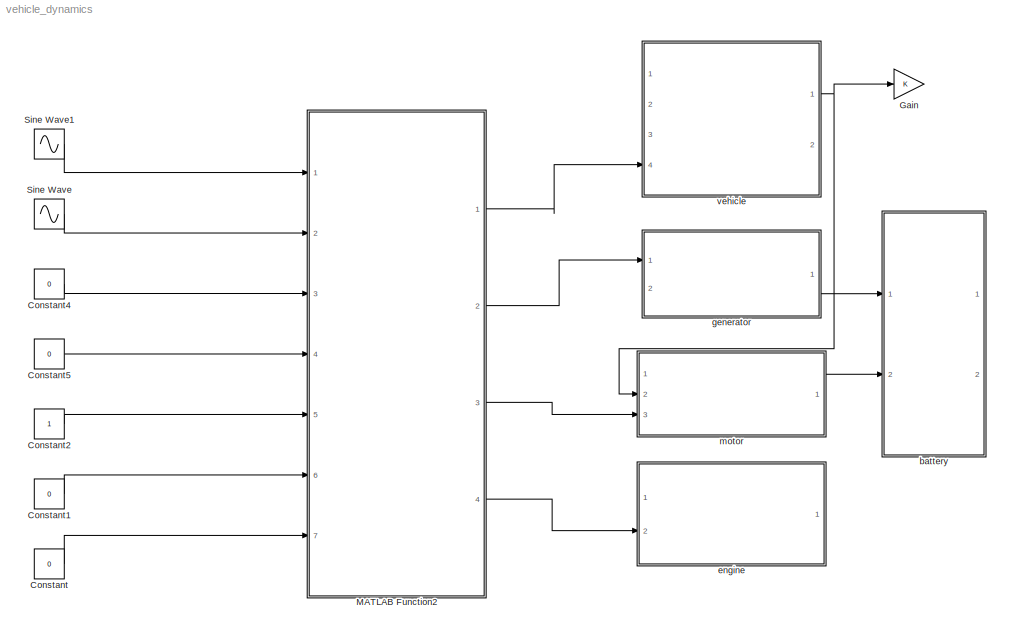
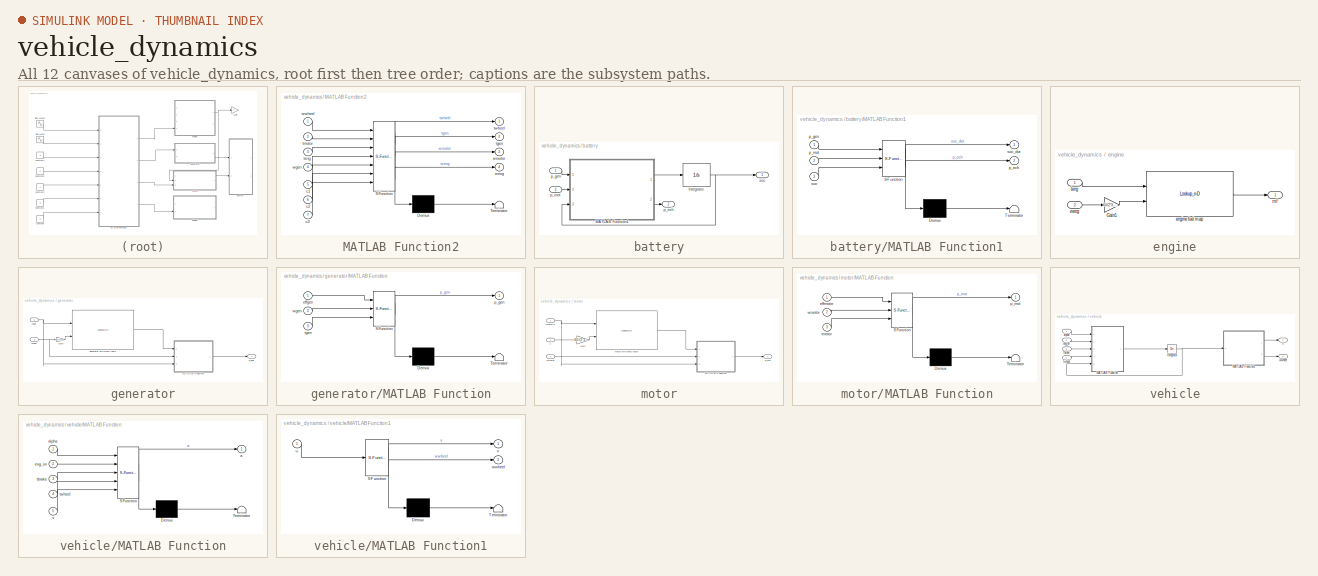
[diagram: thumbnail index - all 12 canvases of the model, root first then tree order]
MODEL vehicle_dynamics
KIND model
BLOCK [Constant] Constant
  SID = 95
  Value = 0
BLOCK [Constant] Constant1
  SID = 97
  Value = 0
BLOCK [Constant] Constant2
  SID = 98
BLOCK [Constant] Constant4
  SID = 100
  Value = 0
BLOCK [Constant] Constant5
  SID = 101
  Value = 0
BLOCK [Gain] Gain
  OutDataTypeStr = Inherit: Inherit via internal rule
  ParamDataTypeStr = Inherit: Inherit via internal rule
  SID = 68
  SaturateOnIntegerOverflow = off
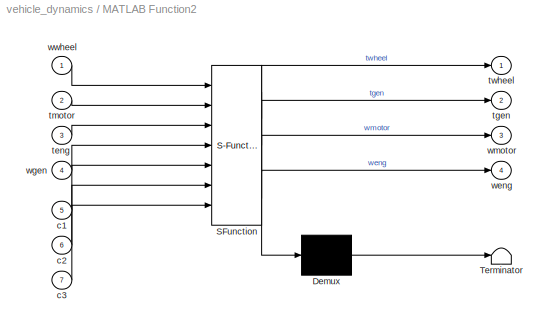
BLOCK [SubSystem] MATLAB Function2
  ErrorFcn = Stateflow.Translate.translate
  PermitHierarchicalResolution = ExplicitOnly
  Ports = [7, 4]
  RequestExecContextInheritance = off
  SFBlockType = MATLAB Function
  SID = 5
  TreatAsAtomicUnit = on
BLOCK [Demux] MATLAB Function2/ Demux 
  Outputs = 1
  Ports = [1, 1]
  SID = 5::20
BLOCK [S-Function] MATLAB Function2/ SFunction 
  EnableBusSupport = on
  FunctionName = sf_sfun
  PortCounts = [7 5]
  Ports = [7, 5]
  SFcnIsStateOwnerBlock = off
  SFunctionDeploymentMode = off
  SID = 5::19
  Tag = Stateflow S-Function vehicle_dynamics 3
BLOCK [Terminator] MATLAB Function2/ Terminator 
  SID = 5::21
BLOCK [Inport] MATLAB Function2/c1
  IconDisplay = Port number
  Port = 5
  SID = 5::26
BLOCK [Inport] MATLAB Function2/c2
  IconDisplay = Port number
  Port = 6
  SID = 5::27
BLOCK [Inport] MATLAB Function2/c3
  IconDisplay = Port number
  Port = 7
  SID = 5::28
BLOCK [Inport] MATLAB Function2/teng
  IconDisplay = Port number
  Port = 3
  SID = 5::24
BLOCK [Outport] MATLAB Function2/tgen
  IconDisplay = Port number
  Port = 2
  SID = 5::5
BLOCK [Inport] MATLAB Function2/tmotor
  IconDisplay = Port number
  Port = 2
  SID = 5::23
BLOCK [Outport] MATLAB Function2/twheel
  IconDisplay = Port number
  SID = 5::31
BLOCK [Outport] MATLAB Function2/weng
  IconDisplay = Port number
  Port = 4
  SID = 5::30
BLOCK [Inport] MATLAB Function2/wgen
  IconDisplay = Port number
  Port = 4
  SID = 5::25
BLOCK [Outport] MATLAB Function2/wmotor
  IconDisplay = Port number
  Port = 3
  SID = 5::29
BLOCK [Inport] MATLAB Function2/wwheel
  IconDisplay = Port number
  SID = 5::22
BLOCK [Sin] Sine Wave
  Amplitude = 5
  Ports = [0, 1]
  SID = 102
  SampleTime = 0
BLOCK [Sin] Sine Wave1
  Amplitude = 10
  Ports = [0, 1]
  SID = 103
  SampleTime = 0
BLOCK [SubSystem] battery
  Ports = [2, 2]
  RequestExecContextInheritance = off
  SID = 40
BLOCK [Integrator] battery/Integrator
  InitialCondition = 0.95
  Ports = [1, 1]
  SID = 36
BLOCK [SubSystem] battery/MATLAB Function1
  ErrorFcn = Stateflow.Translate.translate
  PermitHierarchicalResolution = ExplicitOnly
  Ports = [3, 2]
  RequestExecContextInheritance = off
  SFBlockType = MATLAB Function
  SID = 37
  TreatAsAtomicUnit = on
BLOCK [Demux] battery/MATLAB Function1/ Demux 
  Outputs = 1
  Ports = [1, 1]
  SID = 37::20
BLOCK [S-Function] battery/MATLAB Function1/ SFunction 
  EnableBusSupport = on
  FunctionName = sf_sfun
  PortCounts = [3 3]
  Ports = [3, 3]
  SFcnIsStateOwnerBlock = off
  SFunctionDeploymentMode = off
  SID = 37::19
  Tag = Stateflow S-Function vehicle_dynamics 6
BLOCK [Terminator] battery/MATLAB Function1/ Terminator 
  SID = 37::21
BLOCK [Outport] battery/MATLAB Function1/p_ech
  IconDisplay = Port number
  Port = 2
  SID = 37::25
BLOCK [Inport] battery/MATLAB Function1/p_gen
  IconDisplay = Port number
  SID = 37::1
BLOCK [Inport] battery/MATLAB Function1/p_mot
  IconDisplay = Port number
  Port = 2
  SID = 37::22
BLOCK [Inport] battery/MATLAB Function1/soc
  IconDisplay = Port number
  Port = 3
  SID = 37::24
BLOCK [Outport] battery/MATLAB Function1/soc_dot
  IconDisplay = Port number
  SID = 37::5
BLOCK [Outport] battery/p_ech
  IconDisplay = Port number
  Port = 2
  SID = 44
BLOCK [Inport] battery/p_gen
  IconDisplay = Port number
  SID = 41
BLOCK [Inport] battery/p_mot
  IconDisplay = Port number
  Port = 2
  SID = 42
BLOCK [Outport] battery/soc
  IconDisplay = Port number
  SID = 43
BLOCK [SubSystem] engine
  Ports = [2, 1]
  RequestExecContextInheritance = off
  SID = 71
BLOCK [Gain] engine/Gain1
  Gain = 60/2*3.14
  OutDataTypeStr = Inherit: Inherit via internal rule
  ParamDataTypeStr = Inherit: Inherit via internal rule
  SID = 70
  SaturateOnIntegerOverflow = off
BLOCK [Lookup_n-D] engine/engine fuel map
  BreakpointsForDimension1 = [0,10,20,30,40,50,60,70,80,90,100,110,120,130,140]
  BreakpointsForDimension2 = [1000,1500,2000,2500,3000,3500,4000,4500,5000]
  BreakpointsForDimension3 = [5, 7]
  DiagnosticForOutOfRangeInput = Warning
  InternalRulePriority = Speed
  Ports = [2, 1]
  RndMeth = Simplest
  SID = 69
  Table = reshape([0,0,0,0,0,0,0,0,0,0,0,0,0,0,0,0,0,400,330,300,280,270,260,250,250,250,0,0,0,0,0,0,400,330,300,280,270,260,250,240,240,250,0,0,0,0,0,400,330,300,280,270,250,250,250,240,240,240,0,0,0,0,400,330,300,280,270,250,250,240,240,250,250,0,0,0,0,400,330,300,280,270,260,260,260,260,260,260,260,0,0,0,400,400,300,280,270,270,270,270,270,270,270,270,0,0,0,400,400,400,330,300,300,300,300,300,300,300,300...<+39ch>
BLOCK [Outport] engine/mf
  IconDisplay = Port number
  SID = 74
BLOCK [Inport] engine/teng
  IconDisplay = Port number
  SID = 72
BLOCK [Inport] engine/weng
  IconDisplay = Port number
  Port = 2
  SID = 73
BLOCK [SubSystem] generator
  Ports = [2, 1]
  RequestExecContextInheritance = off
  SID = 45
BLOCK [Gain] generator/Gain
  Gain = 60/(2*3.14)
  OutDataTypeStr = Inherit: Inherit via internal rule
  ParamDataTypeStr = Inherit: Inherit via internal rule
  SID = 51
  SaturateOnIntegerOverflow = off
BLOCK [SubSystem] generator/MATLAB Function
  ErrorFcn = Stateflow.Translate.translate
  PermitHierarchicalResolution = ExplicitOnly
  Ports = [3, 1]
  RequestExecContextInheritance = off
  SFBlockType = MATLAB Function
  SID = 24
  TreatAsAtomicUnit = on
BLOCK [Demux] generator/MATLAB Function/ Demux 
  Outputs = 1
  Ports = [1, 1]
  SID = 24::20
BLOCK [S-Function] generator/MATLAB Function/ SFunction 
  EnableBusSupport = on
  FunctionName = sf_sfun
  PortCounts = [3 2]
  Ports = [3, 2]
  SFcnIsStateOwnerBlock = off
  SFunctionDeploymentMode = off
  SID = 24::19
  Tag = Stateflow S-Function vehicle_dynamics 5
BLOCK [Terminator] generator/MATLAB Function/ Terminator 
  SID = 24::21
BLOCK [Inport] generator/MATLAB Function/effgen
  IconDisplay = Port number
  SID = 24::1
BLOCK [Outport] generator/MATLAB Function/p_gen
  IconDisplay = Port number
  SID = 24::5
BLOCK [Inport] generator/MATLAB Function/tgen
  IconDisplay = Port number
  Port = 3
  SID = 24::23
BLOCK [Inport] generator/MATLAB Function/wgen
  IconDisplay = Port number
  Port = 2
  SID = 24::22
BLOCK [Lookup_n-D] generator/generator efficiency table
  BreakpointsForDimension1 = [-200,-190,-180,-170,-160,-150,-140,-130,-120,-110,-100,-90,-80,-70,-60,-50,-40,-30,-20,-10,0]
  BreakpointsForDimension2 = [0,500,1000,1500,2000,2500,3000,3500,4000,4500,5000,5500,6000]
  BreakpointsForDimension3 = [5, 7]
  DiagnosticForOutOfRangeInput = Warning
  InternalRulePriority = Speed
  Ports = [2, 1]
  RndMeth = Simplest
  SID = 23
  Table = reshape([0,0,0,0,0,0,0,0,0,0,0,0,0,0,0,0,0,0,0,0,0,0,0,77,77,78,78,79,79,80,80,80,80,81,82,83,84,85,86,87,88,0,0,0,83,83,84,84,85,85,86,86,87,87,88,89,89,90,91,91,91,89,0,0,0,84,85,86,86,87,88,88,89,89,90,90,91,91,92,92,92,92,90,0,0,0,87,88,88,89,89,90,90,90,91,91,92,92,92,93,93,92,92,90,0,0,0,88,89,90,90,91,91,91,91,92,92,92,93,93,93,93,93,92,90,0,0,0,0,90,91,91,92,92,92,92,93,93,93,93,93,94,93,9...<+347ch>
BLOCK [Outport] generator/p_gen
  IconDisplay = Port number
  SID = 50
BLOCK [Inport] generator/tgen
  IconDisplay = Port number
  SID = 46
BLOCK [Inport] generator/wgen
  IconDisplay = Port number
  Port = 2
  SID = 47
BLOCK [SubSystem] motor
  Ports = [3, 1]
  RequestExecContextInheritance = off
  SID = 62
BLOCK [Gain] motor/Gain
  Gain = 60/(2*3.14)
  OutDataTypeStr = Inherit: Inherit via internal rule
  ParamDataTypeStr = Inherit: Inherit via internal rule
  SID = 59
  SaturateOnIntegerOverflow = off
BLOCK [SubSystem] motor/MATLAB Function
  ErrorFcn = Stateflow.Translate.translate
  PermitHierarchicalResolution = ExplicitOnly
  Ports = [3, 1]
  RequestExecContextInheritance = off
  SFBlockType = MATLAB Function
  SID = 60
  TreatAsAtomicUnit = on
BLOCK [Demux] motor/MATLAB Function/ Demux 
  Outputs = 1
  Ports = [1, 1]
  SID = 60::20
BLOCK [S-Function] motor/MATLAB Function/ SFunction 
  EnableBusSupport = on
  FunctionName = sf_sfun
  PortCounts = [3 2]
  Ports = [3, 2]
  SFcnIsStateOwnerBlock = off
  SFunctionDeploymentMode = off
  SID = 60::19
  Tag = Stateflow S-Function vehicle_dynamics 7
BLOCK [Terminator] motor/MATLAB Function/ Terminator 
  SID = 60::21
BLOCK [Inport] motor/MATLAB Function/effmotor
  IconDisplay = Port number
  SID = 60::1
BLOCK [Outport] motor/MATLAB Function/p_mot
  IconDisplay = Port number
  SID = 60::5
BLOCK [Inport] motor/MATLAB Function/tmotor
  IconDisplay = Port number
  Port = 3
  SID = 60::23
BLOCK [Inport] motor/MATLAB Function/wmotor
  IconDisplay = Port number
  Port = 2
  SID = 60::22
BLOCK [Lookup_n-D] motor/motor efficiency table
  BreakpointsForDimension1 = [0,250,500,750,1000,1250,1500,1750,2000,2250,2500]
  BreakpointsForDimension2 = [0,25,50,75,100,125,150,175]
  BreakpointsForDimension3 = [5, 7]
  DiagnosticForOutOfRangeInput = Warning
  InternalRulePriority = Speed
  Ports = [2, 1]
  RndMeth = Simplest
  SID = 61
  Table = reshape([69,69,69,69,69,69,69,69,69,69,69,69,70,80,80,80,80,80,80,80,80,80,69,80,84,84,84,84,84,84,84,84,84,69,80,86,88,88,86,86,84,0,0,0,69,80,84,86,86,84,80,0,0,0,0,69,70,80,84,80,0,0,0,0,0,0,69,70,70,70,0,0,0,0,0,0,0,69,70,70,70,0,0,0,0,0,0,0],11,8)
BLOCK [Outport] motor/p_mot
  IconDisplay = Port number
  SID = 67
BLOCK [Inport] motor/tmotor\n
  IconDisplay = Port number
  SID = 63
BLOCK [Inport] motor/v
  IconDisplay = Port number
  Port = 2
  SID = 64
BLOCK [Inport] motor/wmotor
  IconDisplay = Port number
  Port = 3
  SID = 65
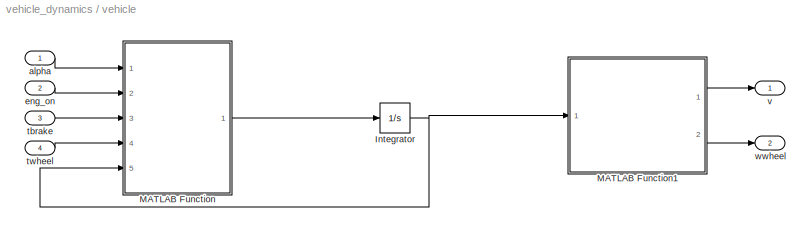
BLOCK [SubSystem] vehicle
  Ports = [4, 2]
  RequestExecContextInheritance = off
  SID = 6
BLOCK [Integrator] vehicle/Integrator
  Ports = [1, 1]
  SID = 2
BLOCK [SubSystem] vehicle/MATLAB Function
  ErrorFcn = Stateflow.Translate.translate
  PermitHierarchicalResolution = ExplicitOnly
  Ports = [5, 1]
  RequestExecContextInheritance = off
  SFBlockType = MATLAB Function
  SID = 1
  TreatAsAtomicUnit = on
BLOCK [Demux] vehicle/MATLAB Function/ Demux 
  Outputs = 1
  Ports = [1, 1]
  SID = 1::20
BLOCK [S-Function] vehicle/MATLAB Function/ SFunction 
  EnableBusSupport = on
  FunctionName = sf_sfun
  PortCounts = [5 2]
  Ports = [5, 2]
  SFcnIsStateOwnerBlock = off
  SFunctionDeploymentMode = off
  SID = 1::19
  Tag = Stateflow S-Function vehicle_dynamics 2
BLOCK [Terminator] vehicle/MATLAB Function/ Terminator 
  SID = 1::21
BLOCK [Outport] vehicle/MATLAB Function/a
  IconDisplay = Port number
  SID = 1::5
BLOCK [Inport] vehicle/MATLAB Function/alpha
  IconDisplay = Port number
  SID = 1::1
BLOCK [Inport] vehicle/MATLAB Function/eng_on
  IconDisplay = Port number
  Port = 2
  SID = 1::22
BLOCK [Inport] vehicle/MATLAB Function/tbrake
  IconDisplay = Port number
  Port = 3
  SID = 1::23
BLOCK [Inport] vehicle/MATLAB Function/twheel
  IconDisplay = Port number
  Port = 4
  SID = 1::24
BLOCK [Inport] vehicle/MATLAB Function/v
  IconDisplay = Port number
  Port = 5
  SID = 1::25
BLOCK [SubSystem] vehicle/MATLAB Function1
  ErrorFcn = Stateflow.Translate.translate
  PermitHierarchicalResolution = ExplicitOnly
  Ports = [1, 2]
  RequestExecContextInheritance = off
  SFBlockType = MATLAB Function
  SID = 4
  TreatAsAtomicUnit = on
BLOCK [Demux] vehicle/MATLAB Function1/ Demux 
  Outputs = 1
  Ports = [1, 1]
  SID = 4::20
BLOCK [S-Function] vehicle/MATLAB Function1/ SFunction 
  EnableBusSupport = on
  FunctionName = sf_sfun
  PortCounts = [1 3]
  Ports = [1, 3]
  SFcnIsStateOwnerBlock = off
  SFunctionDeploymentMode = off
  SID = 4::19
  Tag = Stateflow S-Function vehicle_dynamics 1
BLOCK [Terminator] vehicle/MATLAB Function1/ Terminator 
  SID = 4::21
BLOCK [Inport] vehicle/MATLAB Function1/u
  IconDisplay = Port number
  SID = 4::1
BLOCK [Outport] vehicle/MATLAB Function1/v
  IconDisplay = Port number
  SID = 4::5
BLOCK [Outport] vehicle/MATLAB Function1/wwheel
  IconDisplay = Port number
  Port = 2
  SID = 4::22
BLOCK [Inport] vehicle/alpha
  IconDisplay = Port number
  SID = 7
BLOCK [Inport] vehicle/eng_on
  IconDisplay = Port number
  Port = 2
  SID = 8
BLOCK [Inport] vehicle/tbrake
  IconDisplay = Port number
  Port = 3
  SID = 9
BLOCK [Inport] vehicle/twheel
  IconDisplay = Port number
  Port = 4
  SID = 10
BLOCK [Outport] vehicle/v
  IconDisplay = Port number
  SID = 11
BLOCK [Outport] vehicle/wwheel
  IconDisplay = Port number
  Port = 2
  SID = 12
LINE Constant1:1 -> MATLAB Function2:6
LINE Constant2:1 -> MATLAB Function2:5
LINE Constant4:1 -> MATLAB Function2:3
LINE Constant5:1 -> MATLAB Function2:4
LINE Constant:1 -> MATLAB Function2:7
LINE MATLAB Function2/ Demux :1 -> MATLAB Function2/ Terminator :1
LINE MATLAB Function2/ SFunction :1 -> MATLAB Function2/ Demux :1
LINE MATLAB Function2/ SFunction :2 -> MATLAB Function2/twheel:1
LINE MATLAB Function2/ SFunction :3 -> MATLAB Function2/tgen:1
LINE MATLAB Function2/ SFunction :4 -> MATLAB Function2/wmotor:1
LINE MATLAB Function2/ SFunction :5 -> MATLAB Function2/weng:1
LINE MATLAB Function2/c1:1 -> MATLAB Function2/ SFunction :5
LINE MATLAB Function2/c2:1 -> MATLAB Function2/ SFunction :6
LINE MATLAB Function2/c3:1 -> MATLAB Function2/ SFunction :7
LINE MATLAB Function2/teng:1 -> MATLAB Function2/ SFunction :3
LINE MATLAB Function2/tmotor:1 -> MATLAB Function2/ SFunction :2
LINE MATLAB Function2/wgen:1 -> MATLAB Function2/ SFunction :4
LINE MATLAB Function2/wwheel:1 -> MATLAB Function2/ SFunction :1
LINE MATLAB Function2:1 -> vehicle:4
LINE MATLAB Function2:2 -> generator:1
LINE MATLAB Function2:3 -> motor:3
LINE MATLAB Function2:4 -> engine:2
LINE Sine Wave1:1 -> MATLAB Function2:1
LINE Sine Wave:1 -> MATLAB Function2:2
NET battery/Integrator:1 -> battery/MATLAB Function1:3, battery/soc:1
LINE battery/MATLAB Function1/ Demux :1 -> battery/MATLAB Function1/ Terminator :1
LINE battery/MATLAB Function1/ SFunction :1 -> battery/MATLAB Function1/ Demux :1
LINE battery/MATLAB Function1/ SFunction :2 -> battery/MATLAB Function1/soc_dot:1
LINE battery/MATLAB Function1/ SFunction :3 -> battery/MATLAB Function1/p_ech:1
LINE battery/MATLAB Function1/p_gen:1 -> battery/MATLAB Function1/ SFunction :1
LINE battery/MATLAB Function1/p_mot:1 -> battery/MATLAB Function1/ SFunction :2
LINE battery/MATLAB Function1/soc:1 -> battery/MATLAB Function1/ SFunction :3
LINE battery/MATLAB Function1:1 -> battery/Integrator:1
LINE battery/MATLAB Function1:2 -> battery/p_ech:1
LINE battery/p_gen:1 -> battery/MATLAB Function1:1
LINE battery/p_mot:1 -> battery/MATLAB Function1:2
LINE engine/Gain1:1 -> engine/engine fuel map:2
LINE engine/engine fuel map:1 -> engine/mf:1
LINE engine/teng:1 -> engine/engine fuel map:1
LINE engine/weng:1 -> engine/Gain1:1
LINE generator/Gain:1 -> generator/generator efficiency table:2
LINE generator/MATLAB Function/ Demux :1 -> generator/MATLAB Function/ Terminator :1
LINE generator/MATLAB Function/ SFunction :1 -> generator/MATLAB Function/ Demux :1
LINE generator/MATLAB Function/ SFunction :2 -> generator/MATLAB Function/p_gen:1
LINE generator/MATLAB Function/effgen:1 -> generator/MATLAB Function/ SFunction :1
LINE generator/MATLAB Function/tgen:1 -> generator/MATLAB Function/ SFunction :3
LINE generator/MATLAB Function/wgen:1 -> generator/MATLAB Function/ SFunction :2
LINE generator/MATLAB Function:1 -> generator/p_gen:1
LINE generator/generator efficiency table:1 -> generator/MATLAB Function:1
NET generator/tgen:1 -> generator/MATLAB Function:3, generator/generator efficiency table:1
NET generator/wgen:1 -> generator/Gain:1, generator/MATLAB Function:2
LINE generator:1 -> battery:1
LINE motor/Gain:1 -> motor/motor efficiency table:2
LINE motor/MATLAB Function/ Demux :1 -> motor/MATLAB Function/ Terminator :1
LINE motor/MATLAB Function/ SFunction :1 -> motor/MATLAB Function/ Demux :1
LINE motor/MATLAB Function/ SFunction :2 -> motor/MATLAB Function/p_mot:1
LINE motor/MATLAB Function/effmotor:1 -> motor/MATLAB Function/ SFunction :1
LINE motor/MATLAB Function/tmotor:1 -> motor/MATLAB Function/ SFunction :3
LINE motor/MATLAB Function/wmotor:1 -> motor/MATLAB Function/ SFunction :2
LINE motor/MATLAB Function:1 -> motor/p_mot:1
LINE motor/motor efficiency table:1 -> motor/MATLAB Function:1
NET motor/tmotor\n:1 -> motor/MATLAB Function:3, motor/motor efficiency table:1
LINE motor/v:1 -> motor/Gain:1
LINE motor/wmotor:1 -> motor/MATLAB Function:2
LINE motor:1 -> battery:2
NET vehicle/Integrator:1 -> vehicle/MATLAB Function1:1, vehicle/MATLAB Function:5
LINE vehicle/MATLAB Function/ Demux :1 -> vehicle/MATLAB Function/ Terminator :1
LINE vehicle/MATLAB Function/ SFunction :1 -> vehicle/MATLAB Function/ Demux :1
LINE vehicle/MATLAB Function/ SFunction :2 -> vehicle/MATLAB Function/a:1
LINE vehicle/MATLAB Function/alpha:1 -> vehicle/MATLAB Function/ SFunction :1
LINE vehicle/MATLAB Function/eng_on:1 -> vehicle/MATLAB Function/ SFunction :2
LINE vehicle/MATLAB Function/tbrake:1 -> vehicle/MATLAB Function/ SFunction :3
LINE vehicle/MATLAB Function/twheel:1 -> vehicle/MATLAB Function/ SFunction :4
LINE vehicle/MATLAB Function/v:1 -> vehicle/MATLAB Function/ SFunction :5
LINE vehicle/MATLAB Function1/ Demux :1 -> vehicle/MATLAB Function1/ Terminator :1
LINE vehicle/MATLAB Function1/ SFunction :1 -> vehicle/MATLAB Function1/ Demux :1
LINE vehicle/MATLAB Function1/ SFunction :2 -> vehicle/MATLAB Function1/v:1
LINE vehicle/MATLAB Function1/ SFunction :3 -> vehicle/MATLAB Function1/wwheel:1
LINE vehicle/MATLAB Function1/u:1 -> vehicle/MATLAB Function1/ SFunction :1
LINE vehicle/MATLAB Function1:1 -> vehicle/v:1
LINE vehicle/MATLAB Function1:2 -> vehicle/wwheel:1
LINE vehicle/MATLAB Function:1 -> vehicle/Integrator:1
LINE vehicle/alpha:1 -> vehicle/MATLAB Function:1
LINE vehicle/eng_on:1 -> vehicle/MATLAB Function:2
LINE vehicle/tbrake:1 -> vehicle/MATLAB Function:3
LINE vehicle/twheel:1 -> vehicle/MATLAB Function:4
NET vehicle:1 -> Gain:1, motor:2
note: NET lines group one-source signal fan-out (src -> all destinations, sorted); 1:1 wires keep LINE
CHART vehicle/MATLAB Function1 states=1 transitions=1
  STATE_LABEL 'eML_blk_kernel()'
CHART vehicle/MATLAB Function states=1 transitions=1
  STATE_LABEL 'eML_blk_kernel()'
CHART MATLAB Function2 states=1 transitions=1
  STATE_LABEL 'eML_blk_kernel()'
CHART generator/MATLAB Function states=1 transitions=1
  STATE_LABEL 'eML_blk_kernel()'
CHART battery/MATLAB Function1 states=1 transitions=1
  STATE_LABEL 'eML_blk_kernel()'
CHART motor/MATLAB Function states=1 transitions=1
  STATE_LABEL 'eML_blk_kernel()'
